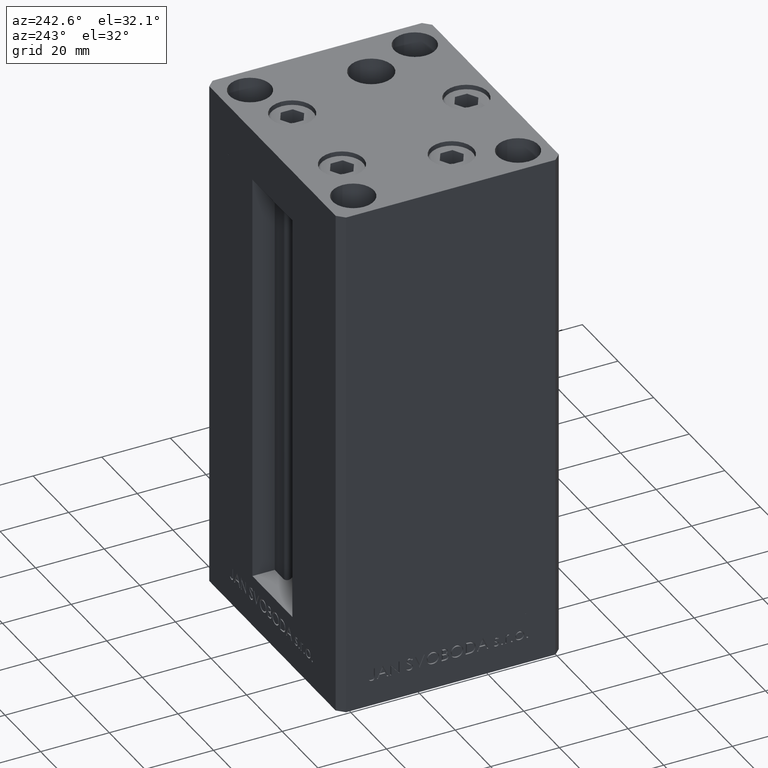
[diagram: clean part render]
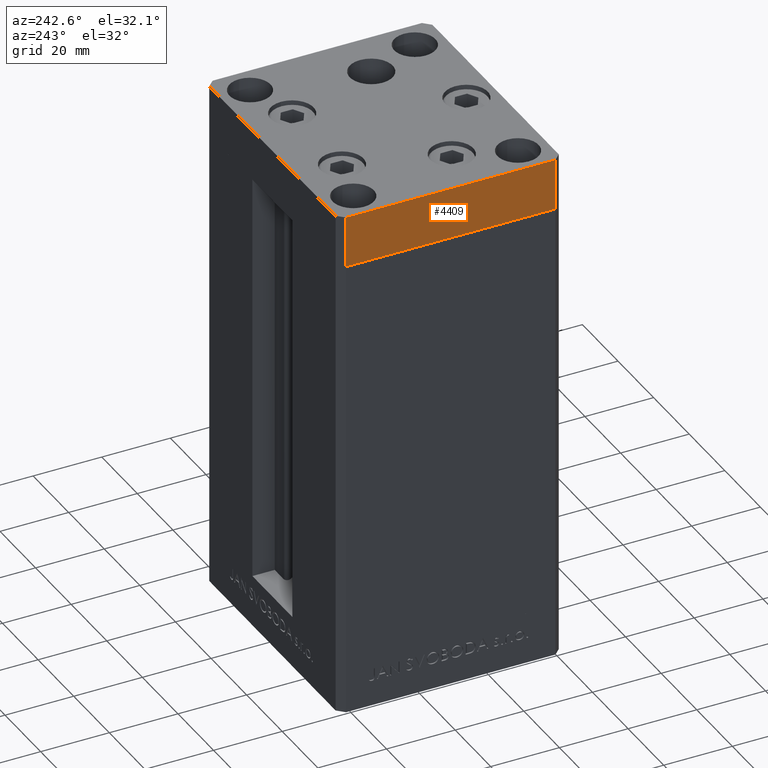
[diagram: same view with one face highlighted and labeled with its STEP entity id]
A machine part, auxiliary view. The second image highlights one B-rep face of the part: STEP entity #4409.
In plain terms, the highlighted planar face has unit normal (-1, -0, 0).
Its self-contained STEP definition (entity closure, byte-faithful):
#157 = EDGE_CURVE ( 'NONE', #46944, #45923, #15582, .T. ) ;
#1718 = DIRECTION ( 'NONE',  ( 0.000000000000000000, 0.000000000000000000, 1.000000000000000000 ) ) ;
#4409 = ADVANCED_FACE ( 'NONE', ( #43645 ), #9521, .T. ) ;
#7812 = VECTOR ( 'NONE', #18323, 1000.000000000000000 ) ;
#9165 = VECTOR ( 'NONE', #46234, 1000.000000000000000 ) ;
#9174 = CARTESIAN_POINT ( 'NONE',  ( -37.50000000000001421, 30.49999999999998579, 0.000000000000000000 ) ) ;
#9521 = PLANE ( 'NONE',  #21244 ) ;
#12554 = VECTOR ( 'NONE', #1718, 1000.000000000000000 ) ;
#15582 = LINE ( 'NONE', #19569, #9165 ) ;
#16493 = CARTESIAN_POINT ( 'NONE',  ( -37.50000000000001421, 30.49999999999998579, -15.00000000000000000 ) ) ;
#16673 = CARTESIAN_POINT ( 'NONE',  ( -37.50000000000001421, 30.49999999999998579, -15.00000000000000000 ) ) ;
#18182 = DIRECTION ( 'NONE',  ( 0.000000000000000000, 0.000000000000000000, 1.000000000000000000 ) ) ;
#18323 = DIRECTION ( 'NONE',  ( 4.550094363217855288E-16, -1.000000000000000000, 0.000000000000000000 ) ) ;
#18855 = VERTEX_POINT ( 'NONE', #32483 ) ;
#19569 = CARTESIAN_POINT ( 'NONE',  ( -37.50000000000001421, 30.49999999999998579, 0.000000000000000000 ) ) ;
#21244 = AXIS2_PLACEMENT_3D ( 'NONE', #16493, #23719, #42911 ) ;
#21679 = ORIENTED_EDGE ( 'NONE', *, *, #36099, .F. ) ;
#22792 = LINE ( 'NONE', #26296, #7812 ) ;
#23719 = DIRECTION ( 'NONE',  ( -1.000000000000000000, -4.550094363217855288E-16, 0.000000000000000000 ) ) ;
#26296 = CARTESIAN_POINT ( 'NONE',  ( -37.50000000000001421, 30.49999999999998579, -15.00000000000000000 ) ) ;
#26391 = EDGE_LOOP ( 'NONE', ( #38426, #21679, #26633, #31581 ) ) ;
#26633 = ORIENTED_EDGE ( 'NONE', *, *, #40076, .T. ) ;
#26861 = EDGE_CURVE ( 'NONE', #42780, #45923, #29654, .T. ) ;
#29407 = CARTESIAN_POINT ( 'NONE',  ( -37.49999999999998579, -30.50000000000001421, -15.00000000000000000 ) ) ;
#29654 = LINE ( 'NONE', #29407, #44098 ) ;
#31581 = ORIENTED_EDGE ( 'NONE', *, *, #26861, .T. ) ;
#32483 = CARTESIAN_POINT ( 'NONE',  ( -37.50000000000001421, 30.49999999999998579, -15.00000000000000000 ) ) ;
#36099 = EDGE_CURVE ( 'NONE', #18855, #46944, #39831, .T. ) ;
#38426 = ORIENTED_EDGE ( 'NONE', *, *, #157, .F. ) ;
#39831 = LINE ( 'NONE', #16673, #12554 ) ;
#40076 = EDGE_CURVE ( 'NONE', #18855, #42780, #22792, .T. ) ;
#42391 = CARTESIAN_POINT ( 'NONE',  ( -37.49999999999998579, -30.50000000000001421, -15.00000000000000000 ) ) ;
#42780 = VERTEX_POINT ( 'NONE', #42391 ) ;
#42911 = DIRECTION ( 'NONE',  ( 4.550094363217855288E-16, -1.000000000000000000, 0.000000000000000000 ) ) ;
#43645 = FACE_OUTER_BOUND ( 'NONE', #26391, .T. ) ;
#44098 = VECTOR ( 'NONE', #18182, 1000.000000000000000 ) ;
#45923 = VERTEX_POINT ( 'NONE', #47292 ) ;
#46234 = DIRECTION ( 'NONE',  ( 4.550094363217855288E-16, -1.000000000000000000, 0.000000000000000000 ) ) ;
#46944 = VERTEX_POINT ( 'NONE', #9174 ) ;
#47292 = CARTESIAN_POINT ( 'NONE',  ( -37.49999999999998579, -30.50000000000001421, 0.000000000000000000 ) ) ;